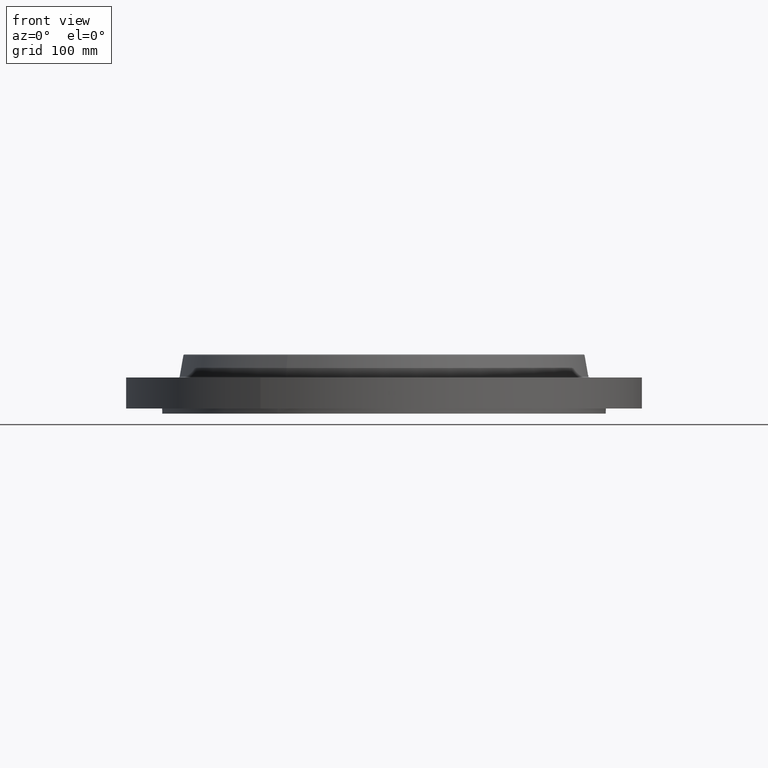
[diagram: clean part render]
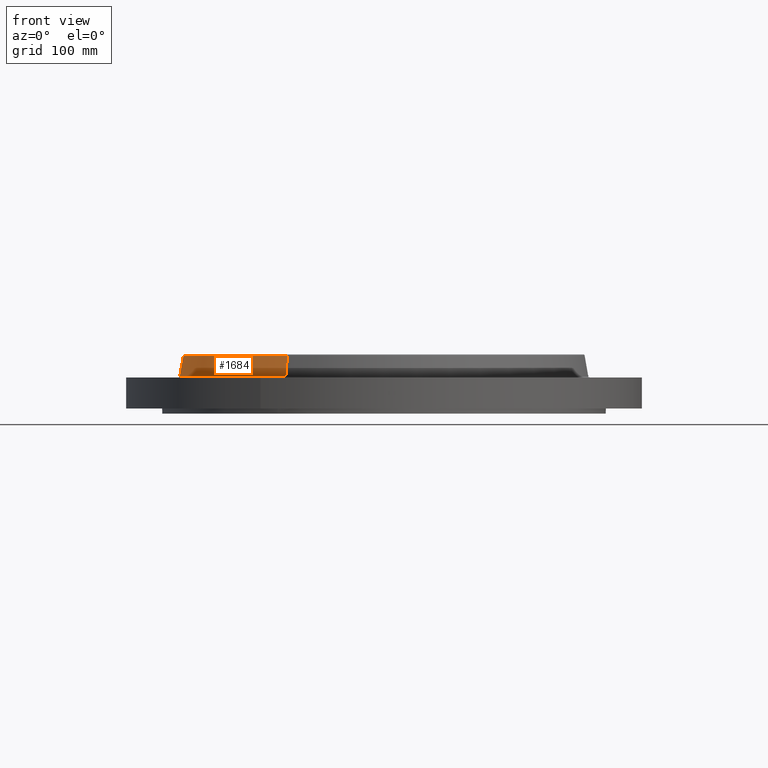
[diagram: same view with one face highlighted and labeled with its STEP entity id]
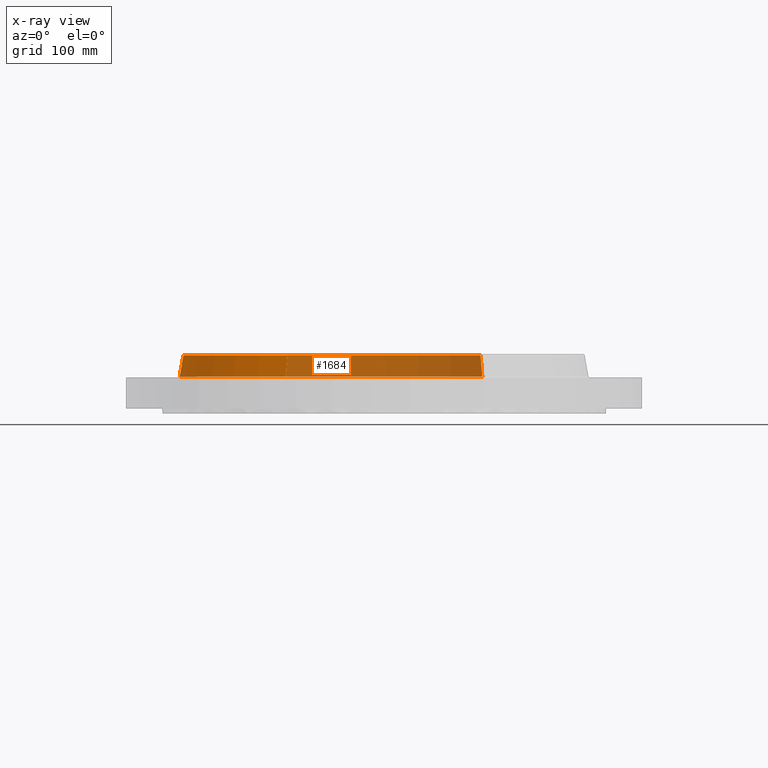
[diagram: x-ray of the same camera — body ghosted, the highlighted face saturated]
A machine part, front view. The second image highlights one B-rep face of the part: STEP entity #1684.
The next image is the same camera in x-ray: the body ghosted, the highlighted face saturated — about 65% of this face is hidden behind the body in this view.
In plain terms, the highlighted conical surface has half-angle 10 deg.
Its self-contained STEP definition (entity closure, byte-faithful):
#1589=AXIS2_PLACEMENT_3D('Circle Axis2P3D',#1587,#1588,$) ;
#1645=AXIS2_PLACEMENT_3D('Cone Axis2P3D',#1642,#1643,#1644) ;
#1675=AXIS2_PLACEMENT_3D('Circle Axis2P3D',#1673,#1674,$) ;
#1560=CARTESIAN_POINT('Vertex',(4.76129848206,8.71549841081,1.54958110935)) ;
#1567=CARTESIAN_POINT('Vertex',(-4.76129848206,-8.71549841081,1.54958110935)) ;
#1587=CARTESIAN_POINT('Axis2P3D Location',(0.,0.,1.54958110935)) ;
#1642=CARTESIAN_POINT('Axis2P3D Location',(0.,0.,2.57041889067)) ;
#1647=CARTESIAN_POINT('Line Origine',(4.71814988543,8.63651543449,2.06000000001)) ;
#1651=CARTESIAN_POINT('Vertex',(4.67500128881,8.55753245816,2.57041889067)) ;
#1658=CARTESIAN_POINT('Vertex',(-4.67500128881,-8.55753245816,2.57041889067)) ;
#1661=CARTESIAN_POINT('Line Origine',(-4.71814988543,-8.63651543449,2.06000000001)) ;
#1673=CARTESIAN_POINT('Axis2P3D Location',(0.,0.,2.57041889067)) ;
#1588=DIRECTION('Axis2P3D Direction',(0.,0.,-0.0393700787402)) ;
#1643=DIRECTION('Axis2P3D Direction',(0.,0.,-0.0393700787402)) ;
#1644=DIRECTION('Axis2P3D XDirection',(-0.0188750212049,-0.0345504945626,0.)) ;
#1648=DIRECTION('Vector Direction',(0.00327761303565,0.00599963041829,-0.03877195878)) ;
#1662=DIRECTION('Vector Direction',(-0.00327761303565,-0.00599963041829,-0.03877195878)) ;
#1674=DIRECTION('Axis2P3D Direction',(0.,0.,-0.0393700787402)) ;
#1649=VECTOR('Line Direction',#1648,0.0393700787402) ;
#1663=VECTOR('Line Direction',#1662,0.0393700787402) ;
#1679=ORIENTED_EDGE('',*,*,#1591,.F.) ;
#1680=ORIENTED_EDGE('',*,*,#1665,.T.) ;
#1681=ORIENTED_EDGE('',*,*,#1677,.T.) ;
#1682=ORIENTED_EDGE('',*,*,#1653,.F.) ;
#1684=ADVANCED_FACE('PartBody',(#1683),#1646,.T.) ;
#1590=CIRCLE('generated circle',#1589,9.93125751273) ;
#1676=CIRCLE('generated circle',#1675,9.75125626896) ;
#1646=CONICAL_SURFACE('Cone',#1645,9.75125626896,0.174532925199) ;
#1591=EDGE_CURVE('',#1568,#1561,#1590,.T.) ;
#1653=EDGE_CURVE('',#1561,#1652,#1650,.F.) ;
#1665=EDGE_CURVE('',#1568,#1659,#1664,.F.) ;
#1677=EDGE_CURVE('',#1659,#1652,#1676,.T.) ;
#1678=EDGE_LOOP('',(#1679,#1680,#1681,#1682)) ;
#1683=FACE_OUTER_BOUND('',#1678,.T.) ;
#1650=LINE('Line',#1647,#1649) ;
#1664=LINE('Line',#1661,#1663) ;
#1561=VERTEX_POINT('',#1560) ;
#1568=VERTEX_POINT('',#1567) ;
#1652=VERTEX_POINT('',#1651) ;
#1659=VERTEX_POINT('',#1658) ;